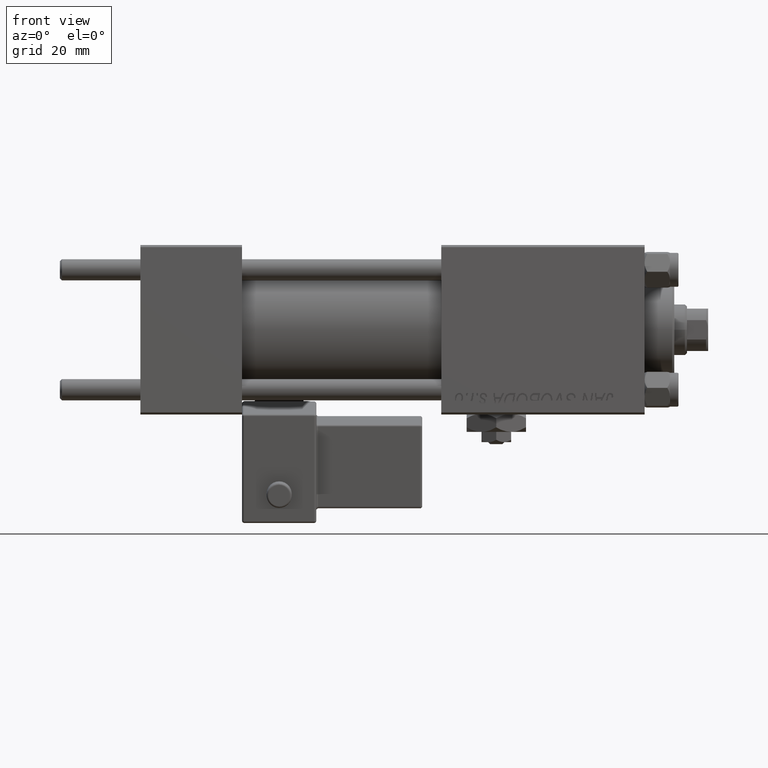
[diagram: clean part render]
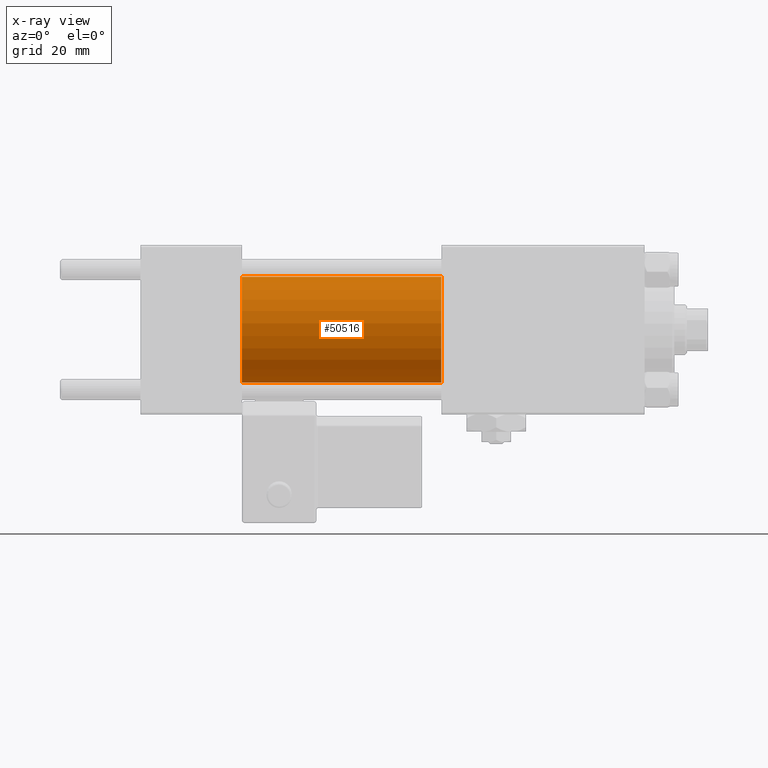
[diagram: x-ray — body ghosted, one internal face saturated and labeled with its STEP entity id]
A machine part, front view, then the same camera in x-ray: the body is ghosted and one INTERNAL B-rep face — a face not visible from any outside direction — is saturated and labeled: STEP entity #50516.
In plain terms, the highlighted cylindrical surface (partial cylindrical patch) has radius 12.5 mm, axis along (-1, -0, -0).
Its self-contained STEP definition (entity closure, byte-faithful):
#531 = VERTEX_POINT ( 'NONE', #16420 ) ;
#2308 = CARTESIAN_POINT ( 'NONE',  ( 71.00000000000001421, 1.530808498934191127E-15, -12.49999999999999645 ) ) ;
#4658 = DIRECTION ( 'NONE',  ( -1.000000000000000000, -0.000000000000000000, -0.000000000000000000 ) ) ;
#5010 = EDGE_CURVE ( 'NONE', #23631, #13525, #37350, .T. ) ;
#6279 = DIRECTION ( 'NONE',  ( -1.000000000000000000, -0.000000000000000000, -0.000000000000000000 ) ) ;
#6559 = DIRECTION ( 'NONE',  ( 1.000000000000000000, 0.000000000000000000, 0.000000000000000000 ) ) ;
#7362 = CARTESIAN_POINT ( 'NONE',  ( 71.00000000000001421, 0.000000000000000000, 0.000000000000000000 ) ) ;
#7380 = ORIENTED_EDGE ( 'NONE', *, *, #30725, .F. ) ;
#13525 = VERTEX_POINT ( 'NONE', #2308 ) ;
#13881 = AXIS2_PLACEMENT_3D ( 'NONE', #7362, #19877, #15795 ) ;
#15795 = DIRECTION ( 'NONE',  ( 0.000000000000000000, 0.000000000000000000, -1.000000000000000000 ) ) ;
#16420 = CARTESIAN_POINT ( 'NONE',  ( 24.00000000000000000, 0.000000000000000000, 12.49999999999999645 ) ) ;
#16562 = AXIS2_PLACEMENT_3D ( 'NONE', #31612, #6559, #35153 ) ;
#17683 = VERTEX_POINT ( 'NONE', #46701 ) ;
#19877 = DIRECTION ( 'NONE',  ( 1.000000000000000000, 0.000000000000000000, 0.000000000000000000 ) ) ;
#23631 = VERTEX_POINT ( 'NONE', #48954 ) ;
#24274 = ORIENTED_EDGE ( 'NONE', *, *, #47881, .F. ) ;
#24296 = ORIENTED_EDGE ( 'NONE', *, *, #5010, .T. ) ;
#24409 = CIRCLE ( 'NONE', #16562, 12.49999999999999645 ) ;
#24820 = ORIENTED_EDGE ( 'NONE', *, *, #27995, .T. ) ;
#27531 = VECTOR ( 'NONE', #4658, 1000.000000000000000 ) ;
#27995 = EDGE_CURVE ( 'NONE', #13525, #17683, #48234, .T. ) ;
#28699 = EDGE_LOOP ( 'NONE', ( #24296, #24820, #7380, #24274 ) ) ;
#30725 = EDGE_CURVE ( 'NONE', #531, #17683, #24409, .T. ) ;
#31612 = CARTESIAN_POINT ( 'NONE',  ( 24.00000000000000000, 0.000000000000000000, 0.000000000000000000 ) ) ;
#33769 = CARTESIAN_POINT ( 'NONE',  ( 71.00000000000001421, 0.000000000000000000, 0.000000000000000000 ) ) ;
#35153 = DIRECTION ( 'NONE',  ( 0.000000000000000000, 0.000000000000000000, -1.000000000000000000 ) ) ;
#37294 = DIRECTION ( 'NONE',  ( 0.000000000000000000, 0.000000000000000000, 1.000000000000000000 ) ) ;
#37350 = CIRCLE ( 'NONE', #13881, 12.49999999999999645 ) ;
#37559 = DIRECTION ( 'NONE',  ( -1.000000000000000000, -0.000000000000000000, -0.000000000000000000 ) ) ;
#37876 = LINE ( 'NONE', #51236, #27531 ) ;
#38249 = VECTOR ( 'NONE', #6279, 1000.000000000000000 ) ;
#41396 = FACE_OUTER_BOUND ( 'NONE', #28699, .T. ) ;
#45210 = CYLINDRICAL_SURFACE ( 'NONE', #46783, 12.49999999999999645 ) ;
#46701 = CARTESIAN_POINT ( 'NONE',  ( 24.00000000000000000, 1.530808498934191127E-15, -12.49999999999999645 ) ) ;
#46783 = AXIS2_PLACEMENT_3D ( 'NONE', #33769, #37559, #37294 ) ;
#47881 = EDGE_CURVE ( 'NONE', #23631, #531, #37876, .T. ) ;
#48234 = LINE ( 'NONE', #51780, #38249 ) ;
#48954 = CARTESIAN_POINT ( 'NONE',  ( 71.00000000000001421, 0.000000000000000000, 12.49999999999999645 ) ) ;
#50516 = ADVANCED_FACE ( 'NONE', ( #41396 ), #45210, .F. ) ;
#51236 = CARTESIAN_POINT ( 'NONE',  ( 71.00000000000001421, 0.000000000000000000, 12.49999999999999645 ) ) ;
#51780 = CARTESIAN_POINT ( 'NONE',  ( 71.00000000000001421, 1.530808498934191127E-15, -12.49999999999999645 ) ) ;